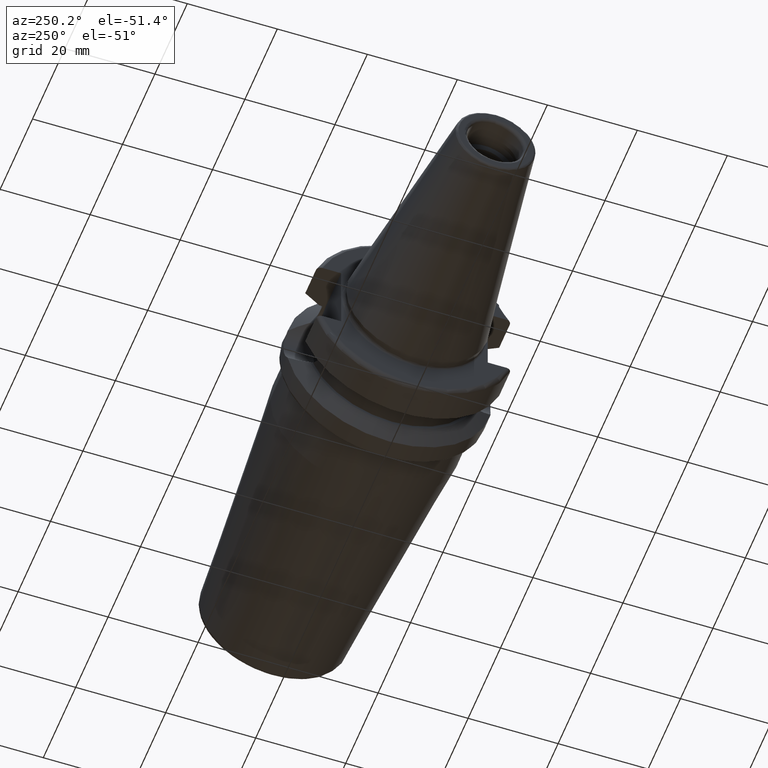
[diagram: clean part render]
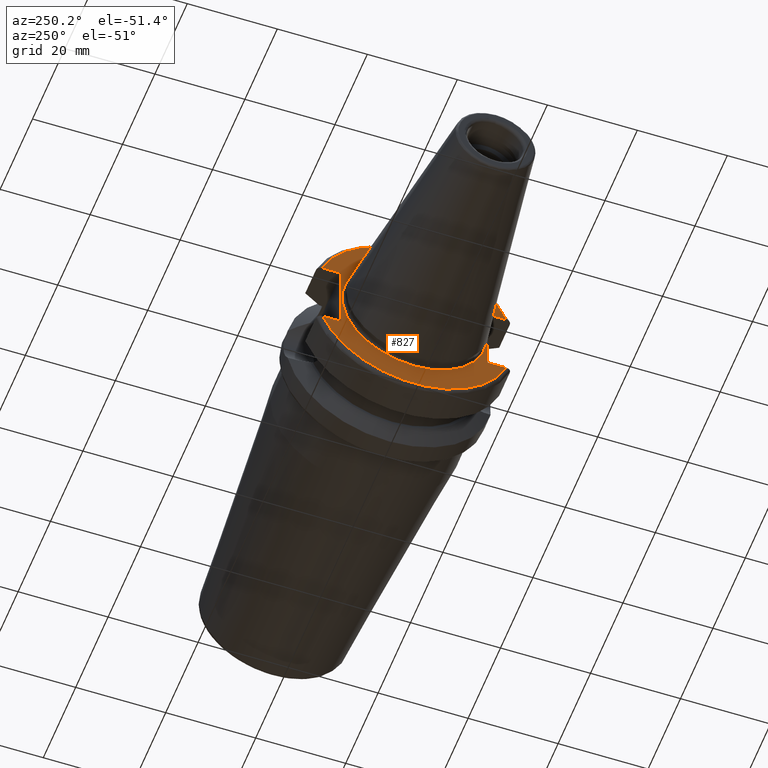
[diagram: same view with one face highlighted and labeled with its STEP entity id]
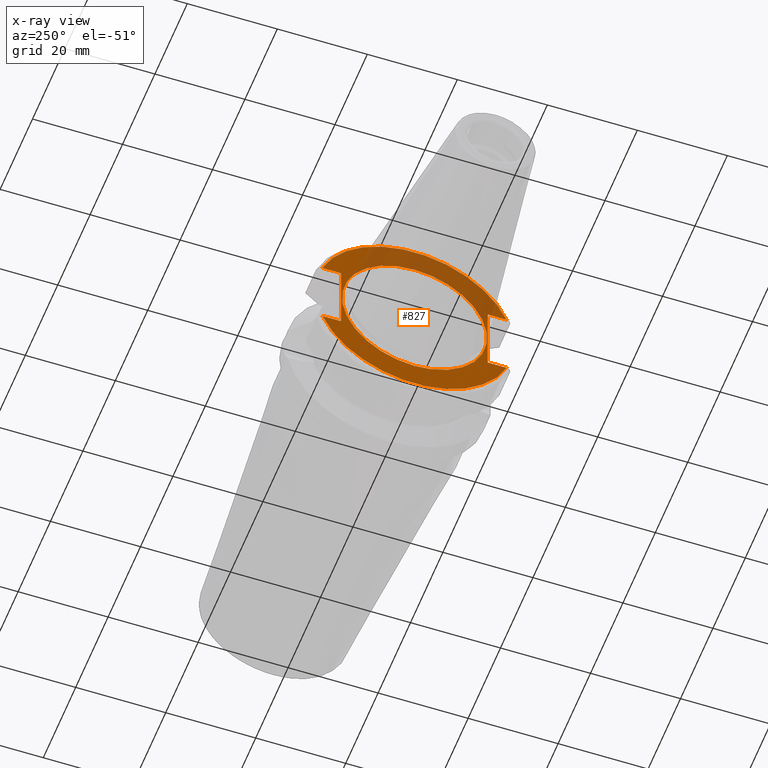
[diagram: x-ray of the same camera — body ghosted, the highlighted face saturated]
A machine part, auxiliary view. The second image highlights one B-rep face of the part: STEP entity #827.
The next image is the same camera in x-ray: the body ghosted, the highlighted face saturated — about 36% of this face is hidden behind the body in this view.
In plain terms, the highlighted planar face has unit normal (-1, -0, 0).
Its self-contained STEP definition (entity closure, byte-faithful):
#42=FACE_BOUND('',#177,.T.);
#57=PLANE('',#946);
#122=FACE_OUTER_BOUND('',#176,.T.);
#176=EDGE_LOOP('',(#720,#721,#722,#723,#724,#725,#726,#727));
#177=EDGE_LOOP('',(#728));
#207=LINE('',#1385,#247);
#210=LINE('',#1395,#250);
#212=LINE('',#1409,#252);
#222=LINE('',#1521,#262);
#224=LINE('',#1536,#264);
#226=LINE('',#1539,#266);
#247=VECTOR('',#1068,10.);
#250=VECTOR('',#1073,10.);
#252=VECTOR('',#1077,10.);
#262=VECTOR('',#1131,10.);
#264=VECTOR('',#1135,10.);
#266=VECTOR('',#1139,10.);
#306=CIRCLE('',#923,22.);
#318=CIRCLE('',#945,16.1);
#319=CIRCLE('',#947,22.);
#369=VERTEX_POINT('',#1373);
#370=VERTEX_POINT('',#1384);
#372=VERTEX_POINT('',#1392);
#373=VERTEX_POINT('',#1394);
#386=VERTEX_POINT('',#1472);
#395=VERTEX_POINT('',#1518);
#396=VERTEX_POINT('',#1520);
#398=VERTEX_POINT('',#1535);
#406=VERTEX_POINT('',#1565);
#460=EDGE_CURVE('',#370,#369,#207,.T.);
#464=EDGE_CURVE('',#373,#372,#210,.T.);
#467=EDGE_CURVE('',#372,#370,#212,.T.);
#487=EDGE_CURVE('',#373,#386,#306,.T.);
#499=EDGE_CURVE('',#396,#395,#222,.T.);
#502=EDGE_CURVE('',#398,#386,#224,.T.);
#504=EDGE_CURVE('',#395,#398,#226,.T.);
#518=EDGE_CURVE('',#406,#406,#318,.T.);
#519=EDGE_CURVE('',#396,#369,#319,.T.);
#720=ORIENTED_EDGE('',*,*,#460,.T.);
#721=ORIENTED_EDGE('',*,*,#519,.F.);
#722=ORIENTED_EDGE('',*,*,#499,.T.);
#723=ORIENTED_EDGE('',*,*,#504,.T.);
#724=ORIENTED_EDGE('',*,*,#502,.T.);
#725=ORIENTED_EDGE('',*,*,#487,.F.);
#726=ORIENTED_EDGE('',*,*,#464,.T.);
#727=ORIENTED_EDGE('',*,*,#467,.T.);
#728=ORIENTED_EDGE('',*,*,#518,.T.);
#827=ADVANCED_FACE('',(#122,#42),#57,.T.);
#923=AXIS2_PLACEMENT_3D('',#1473,#1118,#1119);
#945=AXIS2_PLACEMENT_3D('',#1567,#1175,#1176);
#946=AXIS2_PLACEMENT_3D('',#1568,#1177,#1178);
#947=AXIS2_PLACEMENT_3D('',#1569,#1179,#1180);
#1068=DIRECTION('',(1.62798202122572E-21,-1.,0.));
#1073=DIRECTION('',(-1.62798202122572E-21,1.,-8.07786870900826E-37));
#1077=DIRECTION('',(0.,0.,1.));
#1118=DIRECTION('center_axis',(1.,1.62798202122572E-21,0.));
#1119=DIRECTION('ref_axis',(0.,0.,-1.));
#1131=DIRECTION('',(1.62798202122572E-21,-1.,0.));
#1135=DIRECTION('',(-1.62798202122572E-21,1.,-8.07786870900826E-37));
#1139=DIRECTION('',(0.,0.,-1.));
#1175=DIRECTION('center_axis',(1.,1.62798202122572E-21,0.));
#1176=DIRECTION('ref_axis',(0.,0.,-1.));
#1177=DIRECTION('center_axis',(-1.,-1.62798202122572E-21,0.));
#1178=DIRECTION('ref_axis',(0.,0.,1.));
#1179=DIRECTION('center_axis',(1.,1.62798202122572E-21,0.));
#1180=DIRECTION('ref_axis',(0.,0.,-1.));
#1373=CARTESIAN_POINT('',(1.99999999999999,-20.4743131752936,8.05));
#1384=CARTESIAN_POINT('',(1.99999999999999,-16.3,8.05));
#1385=CARTESIAN_POINT('',(1.99999999999999,2.85,8.05));
#1392=CARTESIAN_POINT('',(1.99999999999999,-16.3,-8.05));
#1394=CARTESIAN_POINT('',(1.99999999999999,-20.4743131752936,-8.05));
#1395=CARTESIAN_POINT('',(1.99999999999999,2.85,-8.05));
#1409=CARTESIAN_POINT('',(1.99999999999999,-16.3,0.));
#1472=CARTESIAN_POINT('',(1.99999999999999,20.4743131752936,-8.05));
#1473=CARTESIAN_POINT('Origin',(1.99999999999999,2.08173882559189E-15,0.));
#1518=CARTESIAN_POINT('',(1.99999999999999,16.3,8.05));
#1520=CARTESIAN_POINT('',(1.99999999999999,20.4743131752936,8.05));
#1521=CARTESIAN_POINT('',(1.99999999999999,19.15,8.05));
#1535=CARTESIAN_POINT('',(1.99999999999999,16.3,-8.05));
#1536=CARTESIAN_POINT('',(1.99999999999999,19.15,-8.05));
#1539=CARTESIAN_POINT('',(1.99999999999999,16.3,0.));
#1565=CARTESIAN_POINT('',(1.99999999999999,1.10057478964651E-16,16.1));
#1567=CARTESIAN_POINT('Origin',(1.99999999999999,2.08173882559189E-15,0.));
#1568=CARTESIAN_POINT('Origin',(1.99999999999999,22.,0.));
#1569=CARTESIAN_POINT('Origin',(1.99999999999999,2.08173882559189E-15,0.));